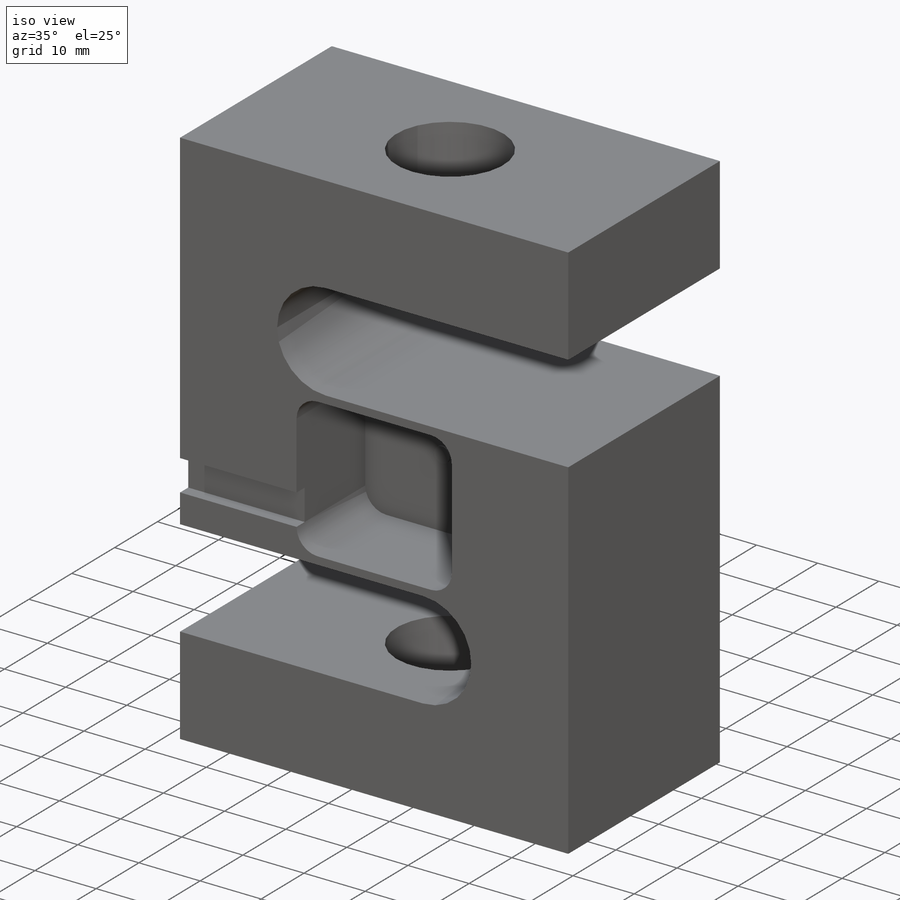
[diagram: iso view]
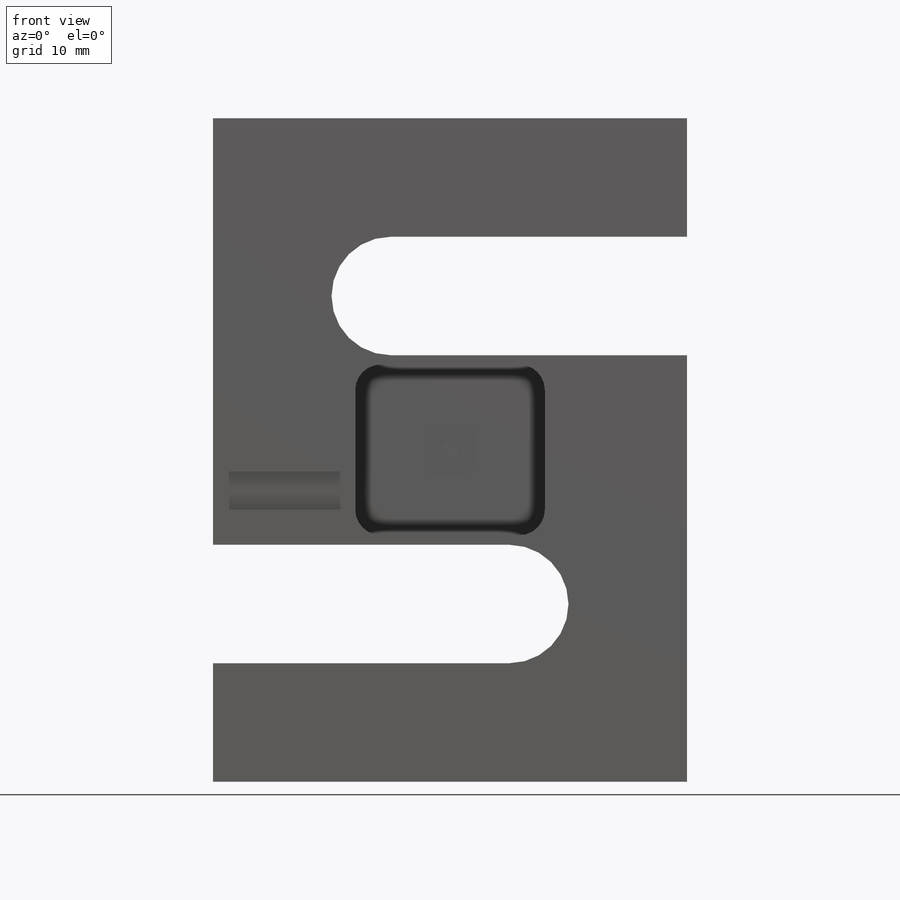
[diagram: front view]
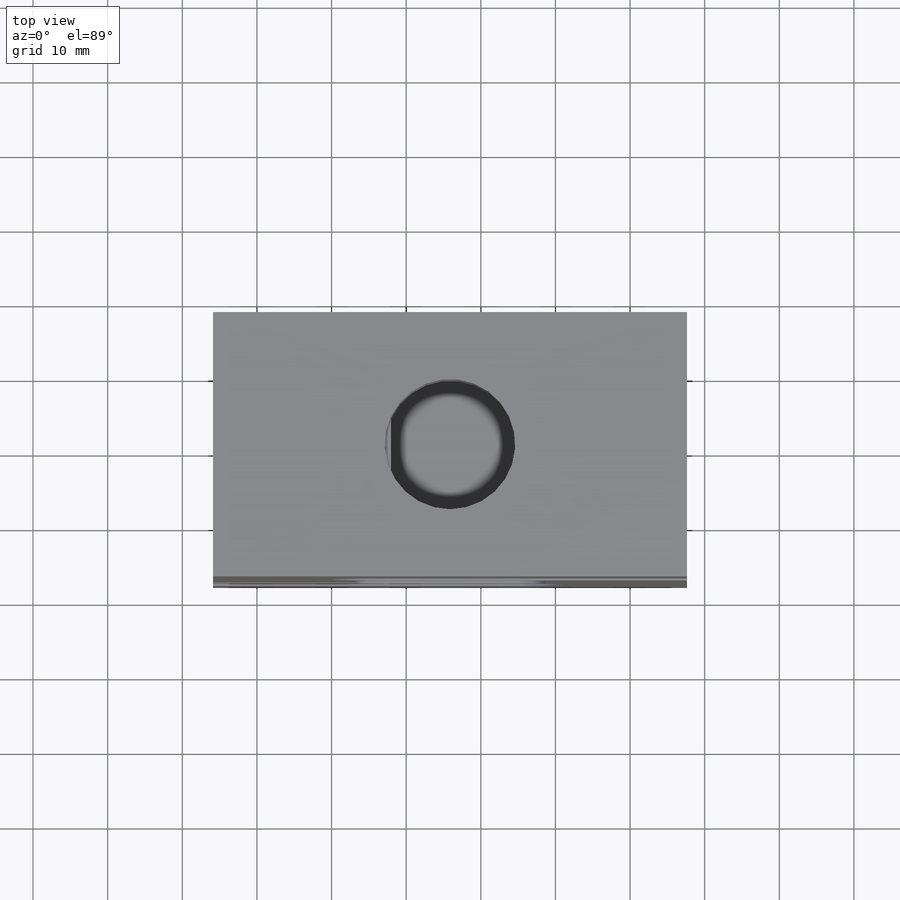
[diagram: top view]
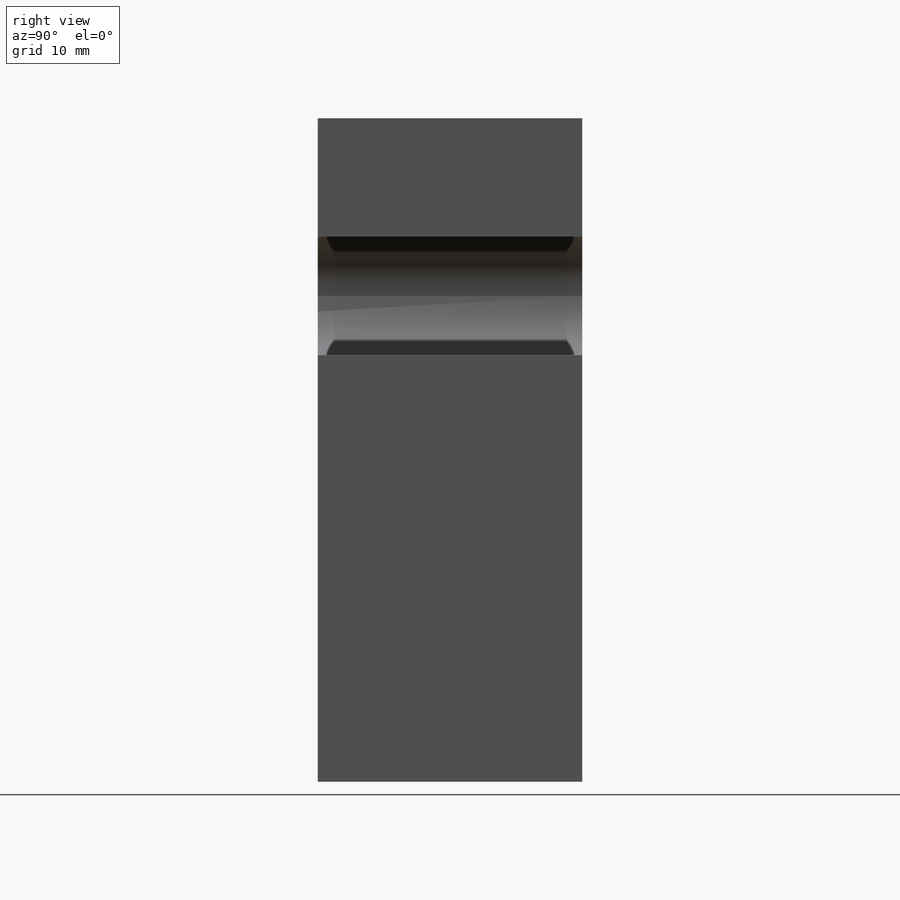
[diagram: right view]
SOLIDWORKS PART (.sldprt)
format: sldprt  version: not decoded by parser v0  size: 431,104 bytes
history: native  units: mm
features: sketch x12, extrude x2, fillet x2, hole x2, thread x2, cut_extrude x2, mirror x2, material x1 (+17 scaffold rows collapsed)
feature tree (42):
  scaffold x17  (default folders/planes/origin — collapsed)
  material  "AISI 4340 Steel, normalized"
  sketch  "Sketch1"  dims[c1.D1=38.1mm c1.D2=31.75mm c1.D3=25.4mm c1.D4=31.75mm c2.D1=101.6mm c2.D5=63.5mm c3.D1=88.9mm c3.D2=15.875mm c3.D3=~14.951178mm c3.D4=15.875mm c4.D1=25.4mm]
  extrude  "Boss-Extrude1"  Depth=35.433mm
  fillet  "Fillet1"  Radius=7.9375mm
  sketch  "Sketch2"
  sketch  "Sketch3"
  hole  "3/4-16 Tapped Hole1"  Diameter=17.4625mm Depth=15.875mm
  sketch  "Sketch5"
  sketch  "Sketch4"  dims[hole-wizard template sketch: 59 standard entries collapsed; hole parameters kept: c18.Thru Tap Drill Dia.=17.4625mm c18.Thru Tap Drill Depth=15.875mm]
  thread  "Hole Thread3"  Diameter=19.05mm  [1 undecoded]
  hole  "3/4-16 Tapped Hole2"  Diameter=17.4625mm Depth=15.875mm
  sketch  "Sketch7"
  sketch  "Sketch6"  dims[hole-wizard template sketch: 59 standard entries collapsed; hole parameters kept: c18.Thru Tap Drill Dia.=17.4625mm c18.Thru Tap Drill Depth=15.875mm]
  thread  "Hole Thread4"  Diameter=19.05mm  [1 undecoded]
  sketch  "Sketch8"  dims[c1.D1=15.875mm c1.D2=25.4mm c2.D1=1.27mm c2.D3=22.86mm]
  cut_extrude  "Cut-Extrude1"  Depth=16.0655mm
  fillet  "Fillet2"  Radius=3.429mm
  mirror  "Mirror1"
  sketch  "Sketch10"  dims[D1=2.54mm]
  extrude  "Boss-Extrude2"  Depth=0.254mm
  mirror  "Mirror2"
  sketch  "Sketch11"  dims[D1=6.35mm]
  sketch  "Sketch15"  dims[D1=5.08mm]
  cut_extrude  "Cut-Extrude2"  Depth=1.905mm
  sketch  "Sketch16"  dims[D1=25.4mm]
decode coverage: 18 of 24 modeling features carry decoded parameters
note: ~ marks probable driven/reference dimensions
note: 2 parameter values undecoded
note: suppression state not decoded; provenance and decode notes live in map.json
